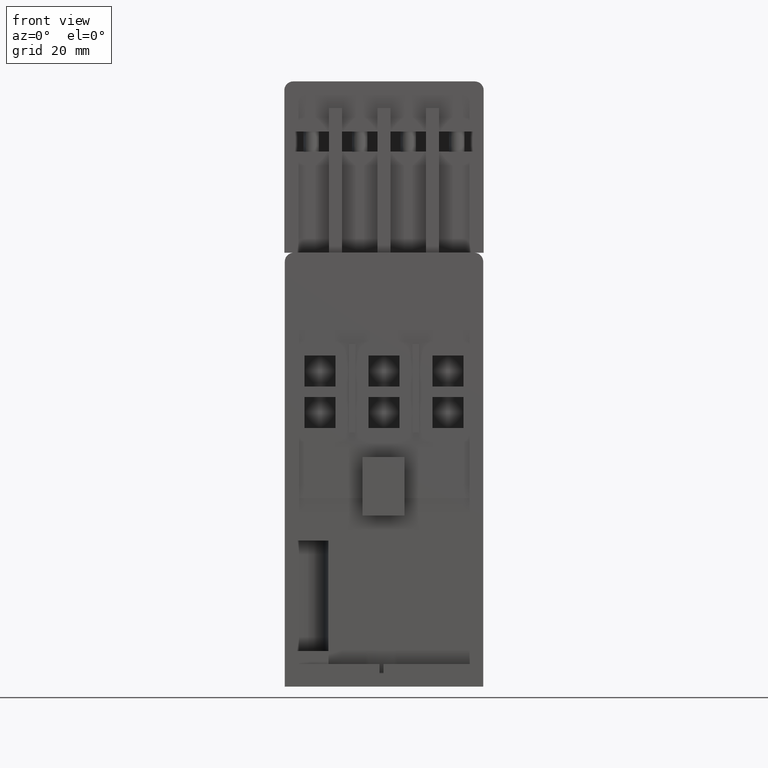
[diagram: clean part render]
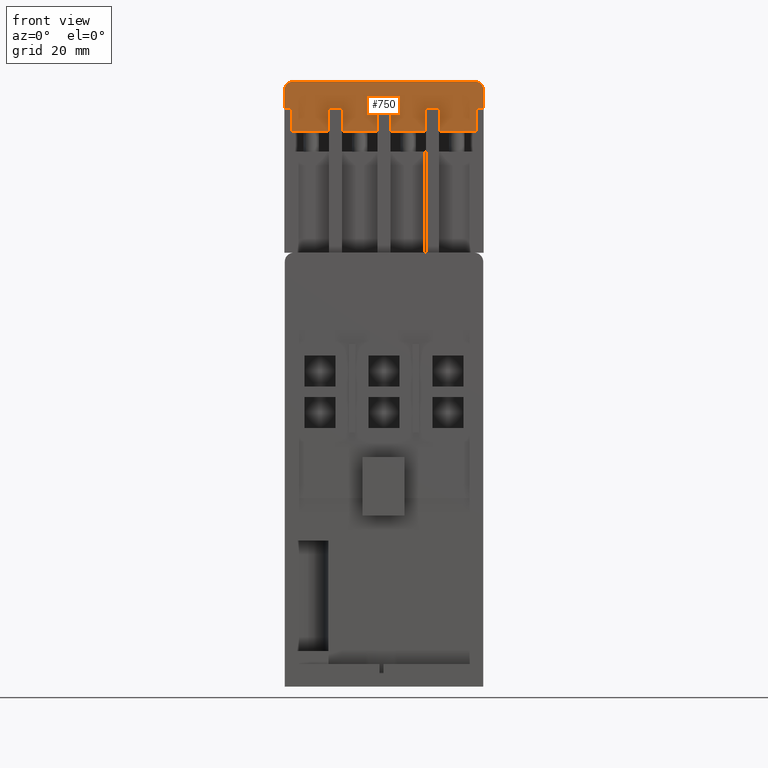
[diagram: same view with one face highlighted and labeled with its STEP entity id]
A machine part, front view. The second image highlights one B-rep face of the part: STEP entity #750.
In plain terms, the highlighted planar face has unit normal (0, 1, 0).
Its self-contained STEP definition (entity closure, byte-faithful):
#750=ADVANCED_FACE('',(#1867),#1335,.F.);
#1335=PLANE('',#12007);
#1867=FACE_OUTER_BOUND('',#2520,.T.);
#2520=EDGE_LOOP('',(#5017,#5018,#5019,#5020,#5021,#5022,#5023,#5024,#5025,
#5026,#5027,#5028,#5029,#5030,#5031,#5032,#5033,#5034,#5035,#5036,#5037,
#5038));
#2939=CIRCLE('',#12005,2.);
#2940=CIRCLE('',#12006,2.);
#5017=ORIENTED_EDGE('',*,*,#8274,.F.);
#5018=ORIENTED_EDGE('',*,*,#8284,.T.);
#5019=ORIENTED_EDGE('',*,*,#8285,.F.);
#5020=ORIENTED_EDGE('',*,*,#8286,.T.);
#5021=ORIENTED_EDGE('',*,*,#8287,.F.);
#5022=ORIENTED_EDGE('',*,*,#8209,.T.);
#5023=ORIENTED_EDGE('',*,*,#8288,.T.);
#5024=ORIENTED_EDGE('',*,*,#8289,.T.);
#5025=ORIENTED_EDGE('',*,*,#8290,.F.);
#5026=ORIENTED_EDGE('',*,*,#8204,.T.);
#5027=ORIENTED_EDGE('',*,*,#8291,.T.);
#5028=ORIENTED_EDGE('',*,*,#8292,.T.);
#5029=ORIENTED_EDGE('',*,*,#8293,.F.);
#5030=ORIENTED_EDGE('',*,*,#8294,.F.);
#5031=ORIENTED_EDGE('',*,*,#8295,.T.);
#5032=ORIENTED_EDGE('',*,*,#8296,.T.);
#5033=ORIENTED_EDGE('',*,*,#8297,.F.);
#5034=ORIENTED_EDGE('',*,*,#8199,.T.);
#5035=ORIENTED_EDGE('',*,*,#8298,.T.);
#5036=ORIENTED_EDGE('',*,*,#8299,.T.);
#5037=ORIENTED_EDGE('',*,*,#8300,.T.);
#5038=ORIENTED_EDGE('',*,*,#8301,.T.);
#6824=VERTEX_POINT('',#17345);
#6825=VERTEX_POINT('',#17346);
#6829=VERTEX_POINT('',#17356);
#6830=VERTEX_POINT('',#17357);
#6834=VERTEX_POINT('',#17367);
#6835=VERTEX_POINT('',#17368);
#6899=VERTEX_POINT('',#17505);
#6900=VERTEX_POINT('',#17507);
#6907=VERTEX_POINT('',#17526);
#6908=VERTEX_POINT('',#17528);
#6909=VERTEX_POINT('',#17530);
#6910=VERTEX_POINT('',#17533);
#6911=VERTEX_POINT('',#17535);
#6912=VERTEX_POINT('',#17538);
#6913=VERTEX_POINT('',#17540);
#6914=VERTEX_POINT('',#17542);
#6915=VERTEX_POINT('',#17544);
#6916=VERTEX_POINT('',#17546);
#6917=VERTEX_POINT('',#17548);
#6918=VERTEX_POINT('',#17551);
#6919=VERTEX_POINT('',#17553);
#6920=VERTEX_POINT('',#17555);
#8199=EDGE_CURVE('',#6824,#6825,#9657,.T.);
#8204=EDGE_CURVE('',#6829,#6830,#9661,.T.);
#8209=EDGE_CURVE('',#6834,#6835,#9665,.T.);
#8274=EDGE_CURVE('',#6899,#6900,#9703,.T.);
#8284=EDGE_CURVE('',#6899,#6907,#2939,.T.);
#8285=EDGE_CURVE('',#6908,#6907,#9707,.T.);
#8286=EDGE_CURVE('',#6908,#6909,#9708,.T.);
#8287=EDGE_CURVE('',#6834,#6909,#9709,.T.);
#8288=EDGE_CURVE('',#6835,#6910,#9710,.T.);
#8289=EDGE_CURVE('',#6910,#6911,#9711,.T.);
#8290=EDGE_CURVE('',#6829,#6911,#9712,.T.);
#8291=EDGE_CURVE('',#6830,#6912,#9713,.T.);
#8292=EDGE_CURVE('',#6912,#6913,#9714,.T.);
#8293=EDGE_CURVE('',#6914,#6913,#9715,.T.);
#8294=EDGE_CURVE('',#6915,#6914,#9716,.T.);
#8295=EDGE_CURVE('',#6915,#6916,#9717,.T.);
#8296=EDGE_CURVE('',#6916,#6917,#9718,.T.);
#8297=EDGE_CURVE('',#6824,#6917,#9719,.T.);
#8298=EDGE_CURVE('',#6825,#6918,#9720,.T.);
#8299=EDGE_CURVE('',#6918,#6919,#9721,.T.);
#8300=EDGE_CURVE('',#6919,#6920,#9722,.T.);
#8301=EDGE_CURVE('',#6920,#6900,#2940,.T.);
#9657=LINE('',#17344,#11008);
#9661=LINE('',#17355,#11012);
#9665=LINE('',#17366,#11016);
#9703=LINE('',#17506,#11054);
#9707=LINE('',#17527,#11058);
#9708=LINE('',#17529,#11059);
#9709=LINE('',#17531,#11060);
#9710=LINE('',#17532,#11061);
#9711=LINE('',#17534,#11062);
#9712=LINE('',#17536,#11063);
#9713=LINE('',#17537,#11064);
#9714=LINE('',#17539,#11065);
#9715=LINE('',#17541,#11066);
#9716=LINE('',#17543,#11067);
#9717=LINE('',#17545,#11068);
#9718=LINE('',#17547,#11069);
#9719=LINE('',#17549,#11070);
#9720=LINE('',#17550,#11071);
#9721=LINE('',#17552,#11072);
#9722=LINE('',#17554,#11073);
#11008=VECTOR('',#14137,1.);
#11012=VECTOR('',#14145,1.);
#11016=VECTOR('',#14153,1.);
#11054=VECTOR('',#14263,1.);
#11058=VECTOR('',#14285,1.);
#11059=VECTOR('',#14286,1.);
#11060=VECTOR('',#14287,1.);
#11061=VECTOR('',#14288,1.);
#11062=VECTOR('',#14289,1.);
#11063=VECTOR('',#14290,1.);
#11064=VECTOR('',#14291,1.);
#11065=VECTOR('',#14292,1.);
#11066=VECTOR('',#14293,1.);
#11067=VECTOR('',#14294,1.);
#11068=VECTOR('',#14295,1.);
#11069=VECTOR('',#14296,1.);
#11070=VECTOR('',#14297,1.);
#11071=VECTOR('',#14298,1.);
#11072=VECTOR('',#14299,1.);
#11073=VECTOR('',#14300,1.);
#12005=AXIS2_PLACEMENT_3D('',#17525,#14283,#14284);
#12006=AXIS2_PLACEMENT_3D('',#17556,#14301,#14302);
#12007=AXIS2_PLACEMENT_3D('',#17557,#14303,#14304);
#14137=DIRECTION('',(1.,0.,0.));
#14145=DIRECTION('',(1.,0.,0.));
#14153=DIRECTION('',(1.,0.,-1.65211759616839E-015));
#14263=DIRECTION('',(1.,0.,0.));
#14283=DIRECTION('',(0.,-1.,0.));
#14284=DIRECTION('',(0.,0.,1.));
#14285=DIRECTION('',(0.,0.,1.));
#14286=DIRECTION('',(1.,0.,0.));
#14287=DIRECTION('',(1.17145334231628E-015,0.,1.));
#14288=DIRECTION('',(1.17145334231628E-015,0.,1.));
#14289=DIRECTION('',(1.,0.,0.));
#14290=DIRECTION('',(1.17145334231628E-015,0.,1.));
#14291=DIRECTION('',(1.17145334231628E-015,0.,1.));
#14292=DIRECTION('',(1.,0.,0.));
#14293=DIRECTION('',(1.17145334231628E-015,0.,1.));
#14294=DIRECTION('',(-1.,0.,1.75668200098917E-015));
#14295=DIRECTION('',(1.17145334231628E-015,0.,1.));
#14296=DIRECTION('',(1.,0.,0.));
#14297=DIRECTION('',(1.17145334231628E-015,0.,1.));
#14298=DIRECTION('',(1.17145334231628E-015,0.,1.));
#14299=DIRECTION('',(1.,0.,0.));
#14300=DIRECTION('',(0.,0.,1.));
#14301=DIRECTION('',(0.,-1.,0.));
#14302=DIRECTION('',(0.,0.,1.));
#14303=DIRECTION('',(0.,1.,0.));
#14304=DIRECTION('',(0.,0.,1.));
#17344=CARTESIAN_POINT('',(12.4,-19.8999999999998,119.7));
#17345=CARTESIAN_POINT('',(12.4,-19.8999999999998,119.7));
#17346=CARTESIAN_POINT('',(20.8,-19.8999999999998,119.7));
#17355=CARTESIAN_POINT('',(-9.4,-19.8999999999998,119.7));
#17356=CARTESIAN_POINT('',(-9.40000000000001,-19.8999999999998,119.7));
#17357=CARTESIAN_POINT('',(-1.5,-19.8999999999998,119.7));
#17366=CARTESIAN_POINT('',(-20.8,-19.8999999999998,119.7));
#17367=CARTESIAN_POINT('',(-20.8,-19.8999999999998,119.7));
#17368=CARTESIAN_POINT('',(-12.4,-19.8999999999998,119.7));
#17505=CARTESIAN_POINT('',(-20.4,-19.8999999999998,131.));
#17506=CARTESIAN_POINT('',(-22.4,-19.8999999999998,131.));
#17507=CARTESIAN_POINT('',(20.4,-19.8999999999998,131.));
#17525=CARTESIAN_POINT('',(-20.4,-19.8999999999998,129.));
#17526=CARTESIAN_POINT('',(-22.4,-19.8999999999998,129.));
#17527=CARTESIAN_POINT('',(-22.4,-19.8999999999998,125.));
#17528=CARTESIAN_POINT('',(-22.4,-19.8999999999998,125.));
#17529=CARTESIAN_POINT('',(-22.4,-19.8999999999998,125.));
#17530=CARTESIAN_POINT('',(-20.8,-19.8999999999998,125.));
#17531=CARTESIAN_POINT('',(-20.8,-19.8999999999998,89.25));
#17532=CARTESIAN_POINT('',(-12.4,-19.8999999999998,89.25));
#17533=CARTESIAN_POINT('',(-12.4,-19.8999999999998,125.));
#17534=CARTESIAN_POINT('',(-22.4,-19.8999999999998,125.));
#17535=CARTESIAN_POINT('',(-9.4,-19.8999999999998,125.));
#17536=CARTESIAN_POINT('',(-9.40000000000004,-19.8999999999998,89.25));
#17537=CARTESIAN_POINT('',(-1.50000000000004,-19.8999999999998,89.25));
#17538=CARTESIAN_POINT('',(-1.5,-19.8999999999998,125.));
#17539=CARTESIAN_POINT('',(-22.4,-19.8999999999998,125.));
#17540=CARTESIAN_POINT('',(1.5,-19.8999999999998,125.));
#17541=CARTESIAN_POINT('',(1.49999999999995,-19.8999999999998,89.25));
#17542=CARTESIAN_POINT('',(1.49999999999999,-19.8999999999998,119.7));
#17543=CARTESIAN_POINT('',(9.4,-19.8999999999998,119.7));
#17544=CARTESIAN_POINT('',(9.39999999999999,-19.8999999999998,119.7));
#17545=CARTESIAN_POINT('',(9.39999999999995,-19.8999999999998,89.25));
#17546=CARTESIAN_POINT('',(9.4,-19.8999999999998,125.));
#17547=CARTESIAN_POINT('',(-22.4,-19.8999999999998,125.));
#17548=CARTESIAN_POINT('',(12.4,-19.8999999999998,125.));
#17549=CARTESIAN_POINT('',(12.4,-19.8999999999998,89.25));
#17550=CARTESIAN_POINT('',(20.8,-19.8999999999998,89.25));
#17551=CARTESIAN_POINT('',(20.8,-19.8999999999998,125.));
#17552=CARTESIAN_POINT('',(-22.4,-19.8999999999998,125.));
#17553=CARTESIAN_POINT('',(22.4,-19.8999999999998,125.));
#17554=CARTESIAN_POINT('',(22.4,-19.8999999999998,125.));
#17555=CARTESIAN_POINT('',(22.4,-19.8999999999998,129.));
#17556=CARTESIAN_POINT('',(20.4,-19.8999999999998,129.));
#17557=CARTESIAN_POINT('',(-22.4,-19.8999999999998,125.));